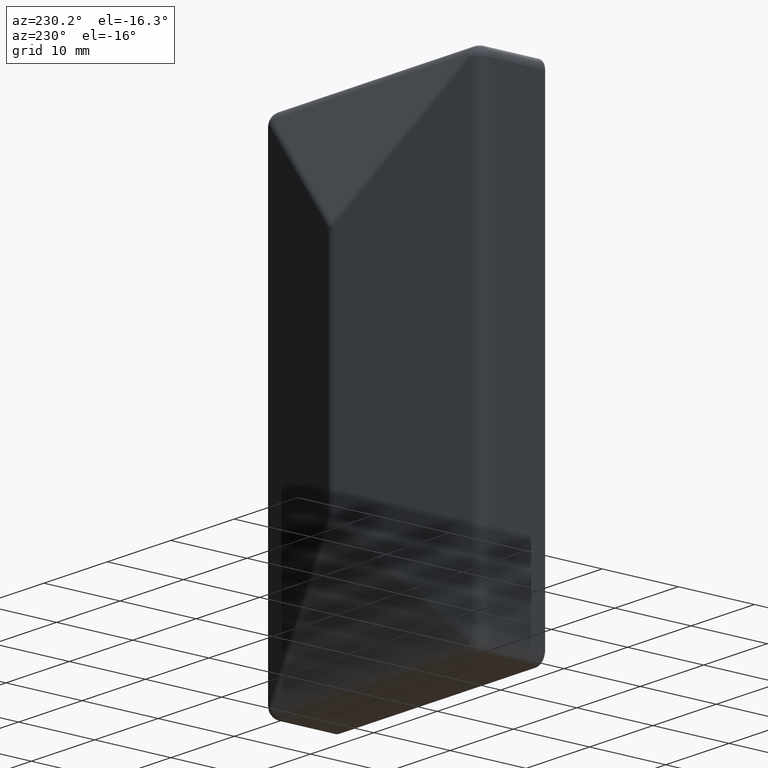
[diagram: clean part render]
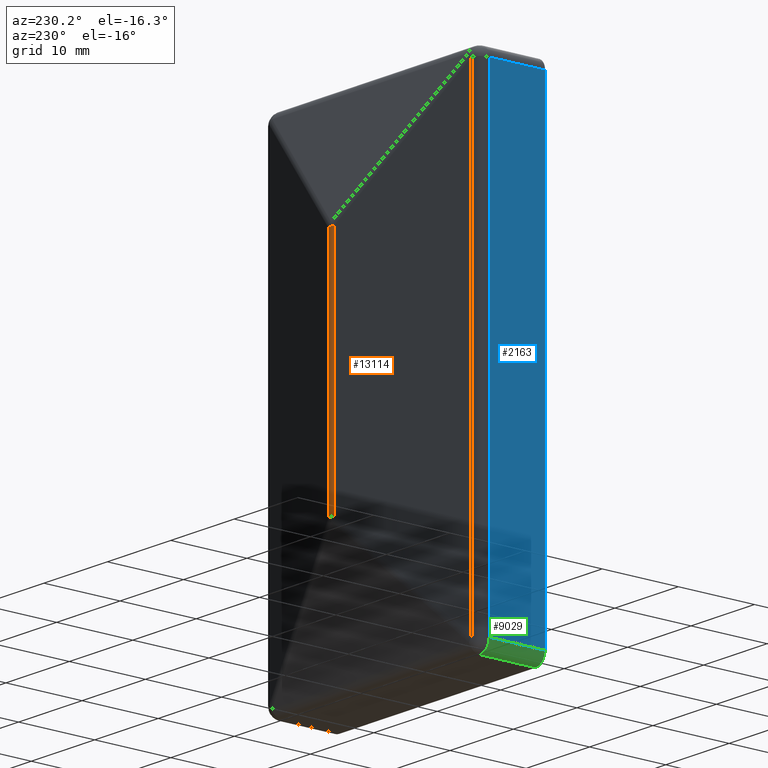
[diagram: same view with three faces highlighted in distinct colors, each labeled with its STEP entity id]
A machine part, auxiliary view with three faces highlighted in distinct colors.
Their STEP definitions:

[orange] entity #13114 — the highlighted cylindrical surface (edge-blend (fillet) strip) has radius 1.5 mm, axis along (-0, -0, 1).
#197 = VECTOR ( 'NONE', #4425, 1000.000000000000000 ) ;
#433 = CIRCLE ( 'NONE', #6223, 1.500000000000003109 ) ;
#507 = EDGE_CURVE ( 'NONE', #2815, #11733, #8875, .T. ) ;
#856 = EDGE_CURVE ( 'NONE', #12545, #2623, #2887, .T. ) ;
#1029 = CARTESIAN_POINT ( 'NONE',  ( 0.000000000000000000, 12.50000000000000000, 15.26747387011748813 ) ) ;
#2232 = VERTEX_POINT ( 'NONE', #8609 ) ;
#2241 = DIRECTION ( 'NONE',  ( 1.000000000000000000, 0.000000000000000000, 0.000000000000000000 ) ) ;
#2623 = VERTEX_POINT ( 'NONE', #7731 ) ;
#2815 = VERTEX_POINT ( 'NONE', #13075 ) ;
#2887 = CIRCLE ( 'NONE', #7052, 1.500000000000003109 ) ;
#3304 = CARTESIAN_POINT ( 'NONE',  ( 0.000000000000000000, 12.50000000000000000, -31.99999999999999289 ) ) ;
#3323 = CARTESIAN_POINT ( 'NONE',  ( 0.4729638621188189118, 13.92348346851295027, -31.99999999999999289 ) ) ;
#3908 = VERTEX_POINT ( 'NONE', #8946 ) ;
#3967 = CIRCLE ( 'NONE', #8644, 1.500000000000003109 ) ;
#4425 = DIRECTION ( 'NONE',  ( -0.000000000000000000, -0.000000000000000000, 1.000000000000000000 ) ) ;
#4776 = ORIENTED_EDGE ( 'NONE', *, *, #9062, .T. ) ;
#5110 = DIRECTION ( 'NONE',  ( -0.000000000000000000, -0.000000000000000000, 1.000000000000000000 ) ) ;
#5220 = DIRECTION ( 'NONE',  ( -0.000000000000000000, -0.000000000000000000, 1.000000000000000000 ) ) ;
#5339 = FACE_OUTER_BOUND ( 'NONE', #8808, .T. ) ;
#5467 = DIRECTION ( 'NONE',  ( -0.000000000000000000, -0.000000000000000000, 1.000000000000000000 ) ) ;
#5497 = VECTOR ( 'NONE', #5467, 1000.000000000000000 ) ;
#6034 = LINE ( 'NONE', #9857, #197 ) ;
#6059 = DIRECTION ( 'NONE',  ( 1.000000000000000000, 9.251858538542951712E-15, 0.000000000000000000 ) ) ;
#6223 = AXIS2_PLACEMENT_3D ( 'NONE', #10803, #5220, #7503 ) ;
#6332 = ORIENTED_EDGE ( 'NONE', *, *, #11119, .T. ) ;
#6602 = ORIENTED_EDGE ( 'NONE', *, *, #507, .F. ) ;
#7052 = AXIS2_PLACEMENT_3D ( 'NONE', #11584, #7101, #6059 ) ;
#7101 = DIRECTION ( 'NONE',  ( 0.000000000000000000, 0.000000000000000000, -1.000000000000000000 ) ) ;
#7503 = DIRECTION ( 'NONE',  ( 1.000000000000000000, 0.000000000000000000, 0.000000000000000000 ) ) ;
#7546 = EDGE_CURVE ( 'NONE', #2232, #3908, #433, .T. ) ;
#7696 = CYLINDRICAL_SURFACE ( 'NONE', #10758, 1.500000000000003109 ) ;
#7731 = CARTESIAN_POINT ( 'NONE',  ( -3.469446951953614189E-15, 14.00000000000000178, 15.26747387011748458 ) ) ;
#7888 = DIRECTION ( 'NONE',  ( 1.000000000000000000, 0.000000000000000000, 0.000000000000000000 ) ) ;
#8609 = CARTESIAN_POINT ( 'NONE',  ( 0.000000000000000000, 14.00000000000000178, -15.26747387011748458 ) ) ;
#8644 = AXIS2_PLACEMENT_3D ( 'NONE', #1029, #11966, #2241 ) ;
#8742 = CARTESIAN_POINT ( 'NONE',  ( -0.4729638621188180236, 13.92348346851295027, 15.26747387011749701 ) ) ;
#8808 = EDGE_LOOP ( 'NONE', ( #6602, #4776, #10793, #13307, #10688, #6332 ) ) ;
#8875 = LINE ( 'NONE', #3323, #5497 ) ;
#8946 = CARTESIAN_POINT ( 'NONE',  ( -0.4729638621188197445, 13.92348346851295027, -15.26747387011748103 ) ) ;
#9062 = EDGE_CURVE ( 'NONE', #2815, #2232, #13756, .T. ) ;
#9857 = CARTESIAN_POINT ( 'NONE',  ( -0.4729638621188189118, 13.92348346851295027, -31.99999999999999289 ) ) ;
#10440 = DIRECTION ( 'NONE',  ( 1.000000000000000000, 0.000000000000000000, 0.000000000000000000 ) ) ;
#10688 = ORIENTED_EDGE ( 'NONE', *, *, #856, .T. ) ;
#10758 = AXIS2_PLACEMENT_3D ( 'NONE', #3304, #12196, #7888 ) ;
#10793 = ORIENTED_EDGE ( 'NONE', *, *, #7546, .T. ) ;
#10803 = CARTESIAN_POINT ( 'NONE',  ( 0.000000000000000000, 12.50000000000000000, -15.26747387011748458 ) ) ;
#11119 = EDGE_CURVE ( 'NONE', #2623, #11733, #3967, .T. ) ;
#11267 = AXIS2_PLACEMENT_3D ( 'NONE', #12738, #5110, #10440 ) ;
#11584 = CARTESIAN_POINT ( 'NONE',  ( 0.000000000000000000, 12.50000000000000000, 15.26747387011748813 ) ) ;
#11733 = VERTEX_POINT ( 'NONE', #13716 ) ;
#11966 = DIRECTION ( 'NONE',  ( 0.000000000000000000, 0.000000000000000000, -1.000000000000000000 ) ) ;
#12121 = EDGE_CURVE ( 'NONE', #3908, #12545, #6034, .T. ) ;
#12196 = DIRECTION ( 'NONE',  ( -0.000000000000000000, -0.000000000000000000, 1.000000000000000000 ) ) ;
#12545 = VERTEX_POINT ( 'NONE', #8742 ) ;
#12738 = CARTESIAN_POINT ( 'NONE',  ( 0.000000000000000000, 12.50000000000000000, -15.26747387011748458 ) ) ;
#13075 = CARTESIAN_POINT ( 'NONE',  ( 0.4729638621188180236, 13.92348346851295027, -15.26747387011747392 ) ) ;
#13114 = ADVANCED_FACE ( 'NONE', ( #5339 ), #7696, .T. ) ;
#13307 = ORIENTED_EDGE ( 'NONE', *, *, #12121, .T. ) ;
#13716 = CARTESIAN_POINT ( 'NONE',  ( 0.4729638621188215208, 13.92348346851294849, 15.26747387011750412 ) ) ;
#13756 = CIRCLE ( 'NONE', #11267, 1.500000000000003109 ) ;

[blue] entity #2163 — the highlighted planar face has unit normal (1, 0, -0).
#1300 = ORIENTED_EDGE ( 'NONE', *, *, #3312, .T. ) ;
#1590 = CARTESIAN_POINT ( 'NONE',  ( -17.00000000000000355, 30.00000000000000000, -30.49999999999999289 ) ) ;
#2163 = ADVANCED_FACE ( 'NONE', ( #5646 ), #2761, .F. ) ;
#2578 = VECTOR ( 'NONE', #12909, 1000.000000000000000 ) ;
#2702 = EDGE_LOOP ( 'NONE', ( #13555, #8702, #7040, #1300 ) ) ;
#2761 = PLANE ( 'NONE',  #9888 ) ;
#2859 = DIRECTION ( 'NONE',  ( 1.000000000000000000, 0.000000000000000000, -1.084202172485504557E-16 ) ) ;
#3312 = EDGE_CURVE ( 'NONE', #5391, #5397, #4055, .T. ) ;
#3361 = VECTOR ( 'NONE', #10971, 1000.000000000000000 ) ;
#4055 = LINE ( 'NONE', #8724, #3361 ) ;
#4334 = EDGE_CURVE ( 'NONE', #4590, #5391, #12929, .T. ) ;
#4590 = VERTEX_POINT ( 'NONE', #13037 ) ;
#5061 = VERTEX_POINT ( 'NONE', #12634 ) ;
#5391 = VERTEX_POINT ( 'NONE', #9441 ) ;
#5397 = VERTEX_POINT ( 'NONE', #10421 ) ;
#5646 = FACE_OUTER_BOUND ( 'NONE', #2702, .T. ) ;
#5872 = LINE ( 'NONE', #8458, #2578 ) ;
#7040 = ORIENTED_EDGE ( 'NONE', *, *, #4334, .T. ) ;
#7596 = LINE ( 'NONE', #1590, #13264 ) ;
#7712 = DIRECTION ( 'NONE',  ( 1.084202172485504434E-16, 0.000000000000000000, 1.000000000000000000 ) ) ;
#8188 = EDGE_CURVE ( 'NONE', #5061, #4590, #7596, .T. ) ;
#8458 = CARTESIAN_POINT ( 'NONE',  ( -17.00000000000000000, 7.350000000000001421, -31.99999999999999289 ) ) ;
#8702 = ORIENTED_EDGE ( 'NONE', *, *, #8188, .T. ) ;
#8724 = CARTESIAN_POINT ( 'NONE',  ( -16.99999999999999645, 30.00000000000000000, 30.50000000000000711 ) ) ;
#9441 = CARTESIAN_POINT ( 'NONE',  ( -16.99999999999999645, 0.000000000000000000, 30.50000000000000711 ) ) ;
#9888 = AXIS2_PLACEMENT_3D ( 'NONE', #13774, #2859, #10425 ) ;
#10421 = CARTESIAN_POINT ( 'NONE',  ( -17.00000000000000000, 7.350000000000001421, 30.50000000000000711 ) ) ;
#10425 = DIRECTION ( 'NONE',  ( -1.084202172485504557E-16, 0.000000000000000000, -1.000000000000000000 ) ) ;
#10971 = DIRECTION ( 'NONE',  ( -0.000000000000000000, 1.000000000000000000, -0.000000000000000000 ) ) ;
#11494 = EDGE_CURVE ( 'NONE', #5061, #5397, #5872, .T. ) ;
#12022 = CARTESIAN_POINT ( 'NONE',  ( -17.00000000000000355, 0.000000000000000000, -31.99999999999999289 ) ) ;
#12634 = CARTESIAN_POINT ( 'NONE',  ( -17.00000000000000000, 7.350000000000001421, -30.49999999999999289 ) ) ;
#12909 = DIRECTION ( 'NONE',  ( -0.000000000000000000, -0.000000000000000000, 1.000000000000000000 ) ) ;
#12929 = LINE ( 'NONE', #12022, #13276 ) ;
#13037 = CARTESIAN_POINT ( 'NONE',  ( -17.00000000000000355, 0.000000000000000000, -30.49999999999999289 ) ) ;
#13264 = VECTOR ( 'NONE', #13552, 1000.000000000000000 ) ;
#13276 = VECTOR ( 'NONE', #7712, 1000.000000000000000 ) ;
#13552 = DIRECTION ( 'NONE',  ( 0.000000000000000000, -1.000000000000000000, 0.000000000000000000 ) ) ;
#13555 = ORIENTED_EDGE ( 'NONE', *, *, #11494, .F. ) ;
#13774 = CARTESIAN_POINT ( 'NONE',  ( -17.00000000000000355, 30.00000000000000000, -31.99999999999999289 ) ) ;

[green] entity #9029 — the highlighted cylindrical surface (edge-blend (fillet) strip) has radius 1.5 mm, axis along (0, -1, 0).
#204 = VERTEX_POINT ( 'NONE', #3719 ) ;
#506 = CARTESIAN_POINT ( 'NONE',  ( -15.50000000000000533, 30.00000000000000000, -30.49999999999999289 ) ) ;
#578 = EDGE_CURVE ( 'NONE', #4590, #204, #8718, .T. ) ;
#1197 = CARTESIAN_POINT ( 'NONE',  ( -15.50000000000000533, 0.000000000000000000, -30.49999999999999289 ) ) ;
#1590 = CARTESIAN_POINT ( 'NONE',  ( -17.00000000000000355, 30.00000000000000000, -30.49999999999999289 ) ) ;
#2266 = DIRECTION ( 'NONE',  ( 0.000000000000000000, 0.000000000000000000, 1.000000000000000000 ) ) ;
#2635 = DIRECTION ( 'NONE',  ( 0.000000000000000000, 0.000000000000000000, -1.000000000000000000 ) ) ;
#3197 = AXIS2_PLACEMENT_3D ( 'NONE', #1197, #12860, #2266 ) ;
#3458 = DIRECTION ( 'NONE',  ( 0.000000000000000000, 1.000000000000000000, 0.000000000000000000 ) ) ;
#3719 = CARTESIAN_POINT ( 'NONE',  ( -15.50000000000000533, 0.000000000000000000, -31.99999999999999289 ) ) ;
#3742 = CARTESIAN_POINT ( 'NONE',  ( -15.50000000000000533, 7.350000000000001421, -31.99999999999999289 ) ) ;
#4501 = LINE ( 'NONE', #12436, #12881 ) ;
#4590 = VERTEX_POINT ( 'NONE', #13037 ) ;
#4917 = ORIENTED_EDGE ( 'NONE', *, *, #578, .F. ) ;
#5061 = VERTEX_POINT ( 'NONE', #12634 ) ;
#5160 = ORIENTED_EDGE ( 'NONE', *, *, #12584, .F. ) ;
#5473 = EDGE_LOOP ( 'NONE', ( #4917, #6470, #5160, #10870 ) ) ;
#6470 = ORIENTED_EDGE ( 'NONE', *, *, #8188, .F. ) ;
#7061 = DIRECTION ( 'NONE',  ( 0.000000000000000000, -1.000000000000000000, 0.000000000000000000 ) ) ;
#7253 = CYLINDRICAL_SURFACE ( 'NONE', #12723, 1.500000000000001332 ) ;
#7596 = LINE ( 'NONE', #1590, #13264 ) ;
#8188 = EDGE_CURVE ( 'NONE', #5061, #4590, #7596, .T. ) ;
#8718 = CIRCLE ( 'NONE', #3197, 1.500000000000001332 ) ;
#9029 = ADVANCED_FACE ( 'NONE', ( #13572 ), #7253, .T. ) ;
#9876 = DIRECTION ( 'NONE',  ( 0.000000000000000000, 0.000000000000000000, 1.000000000000000000 ) ) ;
#9934 = CIRCLE ( 'NONE', #11487, 1.500000000000001332 ) ;
#10236 = DIRECTION ( 'NONE',  ( -0.000000000000000000, 1.000000000000000000, -0.000000000000000000 ) ) ;
#10351 = VERTEX_POINT ( 'NONE', #3742 ) ;
#10870 = ORIENTED_EDGE ( 'NONE', *, *, #11284, .F. ) ;
#11284 = EDGE_CURVE ( 'NONE', #204, #10351, #4501, .T. ) ;
#11487 = AXIS2_PLACEMENT_3D ( 'NONE', #13196, #3458, #9876 ) ;
#12436 = CARTESIAN_POINT ( 'NONE',  ( -15.50000000000000533, 30.00000000000000000, -31.99999999999999289 ) ) ;
#12584 = EDGE_CURVE ( 'NONE', #10351, #5061, #9934, .T. ) ;
#12634 = CARTESIAN_POINT ( 'NONE',  ( -17.00000000000000000, 7.350000000000001421, -30.49999999999999289 ) ) ;
#12723 = AXIS2_PLACEMENT_3D ( 'NONE', #506, #7061, #2635 ) ;
#12860 = DIRECTION ( 'NONE',  ( -0.000000000000000000, -1.000000000000000000, -0.000000000000000000 ) ) ;
#12881 = VECTOR ( 'NONE', #10236, 1000.000000000000000 ) ;
#13037 = CARTESIAN_POINT ( 'NONE',  ( -17.00000000000000355, 0.000000000000000000, -30.49999999999999289 ) ) ;
#13196 = CARTESIAN_POINT ( 'NONE',  ( -15.50000000000000533, 7.350000000000001421, -30.49999999999999289 ) ) ;
#13264 = VECTOR ( 'NONE', #13552, 1000.000000000000000 ) ;
#13552 = DIRECTION ( 'NONE',  ( 0.000000000000000000, -1.000000000000000000, 0.000000000000000000 ) ) ;
#13572 = FACE_OUTER_BOUND ( 'NONE', #5473, .T. ) ;